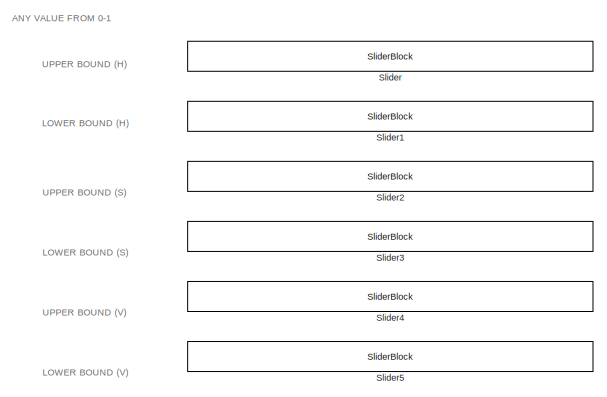
[diagram: root canvas - part 1/2, left side, full height]
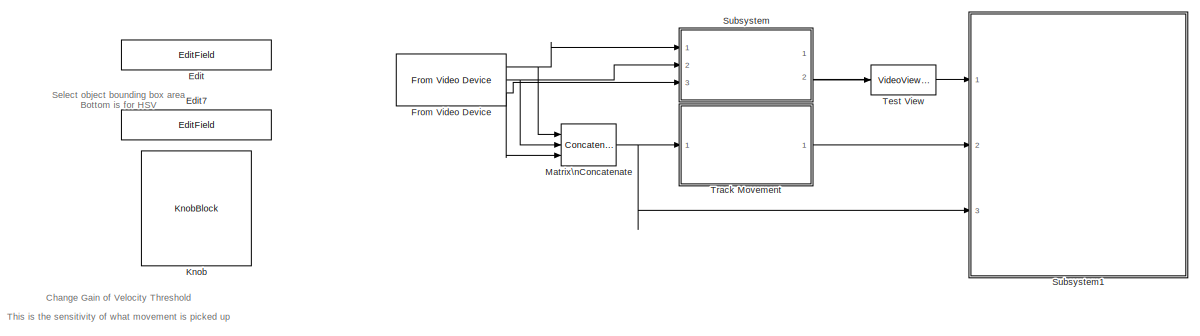
[diagram: root canvas - part 2/2, right side, full height]
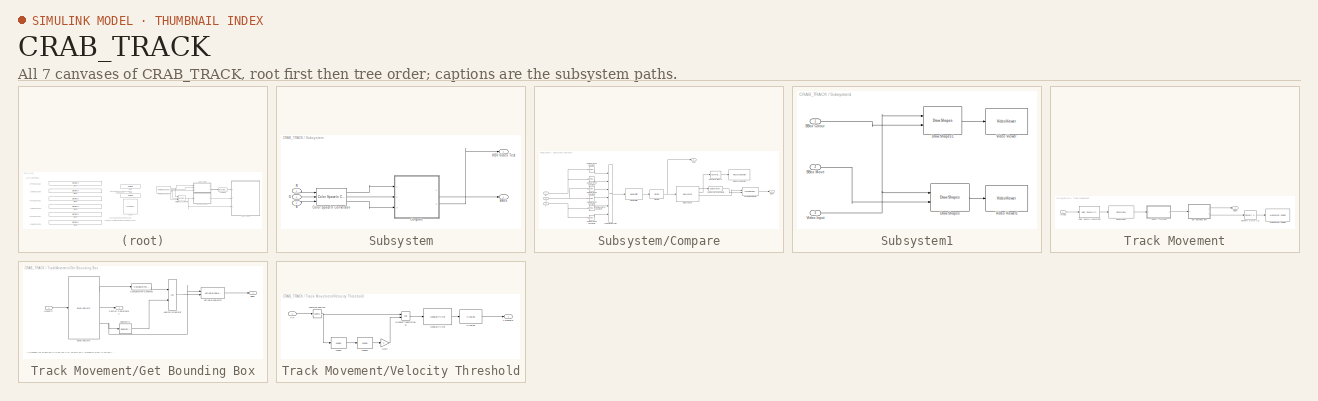
[diagram: thumbnail index - all 7 canvases of the model, root first then tree order]
MODEL CRAB_TRACK
KIND model
BLOCK [EditField] Edit
  Alignment = Center
  BindingPersistence = DataTag0
  LabelPosition = Hide
  SID = 52
  ShowInitialText = on
BLOCK [EditField] Edit7
  Alignment = Center
  BindingPersistence = DataTag1
  LabelPosition = Hide
  SID = 129
  ShowInitialText = on
BLOCK [Reference] From Video Device  REF=imaqlib/From Video Device
  BayerSensorAlignment = grbg
  BlockHandle = 5428.0005
  CanDoHWTrigger = no
  DataType = single
  DevXMLPath = <path>
  Device = winvideo 1 (USB_Camera)
  DeviceMenu = winvideo 1 (USB_Camera)
  EnableHWTrigger = off
  EngLibPath = <path>
  EngXMLPath = <path>
  ImaqMode = off
  MultiThreadCoSim = auto
  ObjConstructor = videoinput('winvideo', 1)
  OutputPortsMode = Separate color signals
  Ports = [0, 3]
  ROIColumn = 0
  ROIHeight = 1080
  ROIPosition = [0 0 1080 1920]
  ROIRow = 0
  ROIWidth = 1920
  ReturnedColorSpace = rgb
  SID = 20
  SampleTime = 1/30
  SourceBlock = imaqlib/From Video Device
  SourceProductBaseCode = IA
  SourceProductName = Image Acquisition Toolbox
  SourceType = From Video Device
  TriggerConfiguration = none/none
  UserData = DataTag2
  UserDataPersistent = on
  VideoFormat = MJPG_1920x1080
  VideoFormatMenu = MJPG_1920x1080
  VideoSource = input1
BLOCK [KnobBlock] Knob
  BindingPersistence = DataTag3
  SID = 53
BLOCK [Concatenate] Matrix\nConcatenate
  ConcatenateDimension = 3
  Mode = Multidimensional array
  NumInputs = 3
  Ports = [3, 1]
  SID = 133
BLOCK [SliderBlock] Slider
  BindingPersistence = DataTag4
  SID = 137
  ScaleMax = 1
BLOCK [SliderBlock] Slider1
  BindingPersistence = DataTag5
  SID = 138
  ScaleMax = 1
BLOCK [SliderBlock] Slider2
  BindingPersistence = DataTag6
  SID = 139
  ScaleMax = 1
BLOCK [SliderBlock] Slider3
  BindingPersistence = DataTag7
  SID = 144
  ScaleMax = 1
BLOCK [SliderBlock] Slider4
  BindingPersistence = DataTag8
  SID = 172
  ScaleMax = 1
BLOCK [SliderBlock] Slider5
  BindingPersistence = DataTag9
  SID = 173
  ScaleMax = 1
BLOCK [SubSystem] Subsystem
  Ports = [3, 2]
  RequestExecContextInheritance = off
  SID = 65
BLOCK [Inport] Subsystem/B
  IconDisplay = Port number
  Port = 3
  SID = 132
BLOCK [Outport] Subsystem/BBox
  IconDisplay = Port number
  SID = 67
BLOCK [Reference] Subsystem/Color Space\n Conversion  REF=visionconversions/Color Space\n Conversion
  MultiThreadCoSim = auto
  Ports = [3, 3]
  SID = 68
  SourceBlock = visionconversions/Color Space\n Conversion
  SourceProductBaseCode = VP
  SourceProductName = Computer Vision Toolbox
  SourceType = Color Space Conversion
  conversion = Obsolete
  conversionActive = R'G'B' to HSV
  imagePorts = Separate color signals
  rec = Rec. 601 (SDTV)
  sys = 1125/60/2:1
  wp_str = D65
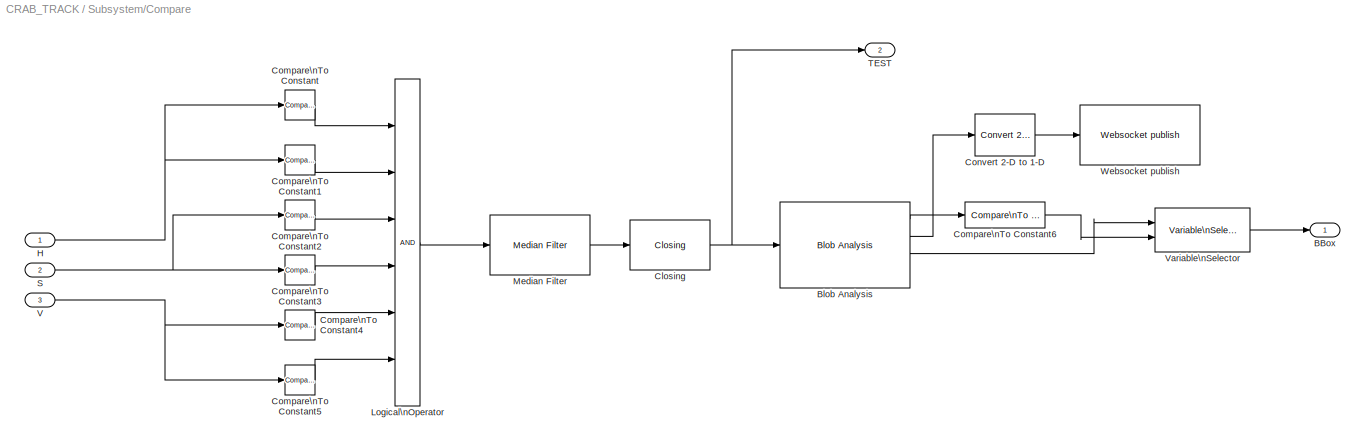
BLOCK [SubSystem] Subsystem/Compare
  Ports = [3, 2]
  RequestExecContextInheritance = off
  SID = 92
BLOCK [Outport] Subsystem/Compare/BBox
  IconDisplay = Port number
  SID = 94
BLOCK [Reference] Subsystem/Compare/Blob Analysis  REF=visionstatistics/Blob Analysis
  LockScale = off
  MultiThreadCoSim = auto
  Ports = [1, 4]
  SID = 101
  SourceBlock = visionstatistics/Blob Analysis
  SourceProductBaseCode = VP
  SourceProductName = Computer Vision Toolbox
  SourceType = Blob Analysis
  Tag = vipblks_row_conv
  accumFracLength = 0
  accumMode = Binary point scaling
  accumSlope = 2^0
  accumWordLength = 32
  angle = off
  area = on
  bBox = on
  centroid = on
  conn = 8
  eccentricity = off
  equivDiameterSq = off
  excludeBorderBlob = off
  extent = off
  fillValues = -1
  firstCoeffFracLength = 14
  firstCoeffMode = Binary point scaling
  firstCoeffSlope = 2^-14
  firstCoeffWordLength = 16
  isCount = off
  isFill = on
  isLabel = on
  isOutVarDim = off
  majorAxis = off
  maxArea = intmax('uint32')
  maxBlobs = 50
  memoryFracLength = 16
  memoryMode = Same as product output
  memorySlope = 2^-16
  memoryWordLength = 32
  minArea = 0
  minorAxis = off
  outDT = double
  outputFracLength = 16
  outputMode = Binary point scaling
  outputSlope = 2^-16
  outputWordLength = 32
  overflowMode = off
  perimeter = off
  prodOutputFracLength = 16
  prodOutputMode = Binary point scaling
  prodOutputSlope = 2^-16
  prodOutputWordLength = 32
  roundingMode = Floor
  secondCoeffFracLength = 16
  secondCoeffMode = Binary point scaling
  secondCoeffSlope = 2^-16
  secondCoeffWordLength = 32
  useMaxArea = off
  useMinArea = off
  warnIfNumBlobsExceeded = on
BLOCK [Reference] Subsystem/Compare/Closing  REF=visionmorphops/Closing
  MultiThreadCoSim = auto
  Ports = [1, 1]
  SID = 136
  SourceBlock = visionmorphops/Closing
  SourceProductBaseCode = VP
  SourceProductName = Computer Vision Toolbox
  SourceType = Closing
  nhoodsrc = Specify via dialog
  strel = strel('line',5,45)
BLOCK [Reference] Subsystem/Compare/Compare\nTo Constant  REF=simulink/Logic and Bit\nOperations/Compare\nTo Constant
  OutDataTypeStr = boolean
  Ports = [1, 1]
  SID = 91
  SourceBlock = simulink/Logic and Bit\nOperations/Compare\nTo Constant
  SourceProductBaseCode = SL
  SourceProductName = Simulink
  SourceType = Compare To Constant
  ZeroCross = on
  const = 1
  relop = <=
BLOCK [Reference] Subsystem/Compare/Compare\nTo Constant1  REF=simulink/Logic and Bit\nOperations/Compare\nTo Constant
  OutDataTypeStr = boolean
  Ports = [1, 1]
  SID = 95
  SourceBlock = simulink/Logic and Bit\nOperations/Compare\nTo Constant
  SourceProductBaseCode = SL
  SourceProductName = Simulink
  SourceType = Compare To Constant
  ZeroCross = on
  const = 0.7899159663865546
  relop = >=
BLOCK [Reference] Subsystem/Compare/Compare\nTo Constant2  REF=simulink/Logic and Bit\nOperations/Compare\nTo Constant
  OutDataTypeStr = boolean
  Ports = [1, 1]
  SID = 96
  SourceBlock = simulink/Logic and Bit\nOperations/Compare\nTo Constant
  SourceProductBaseCode = SL
  SourceProductName = Simulink
  SourceType = Compare To Constant
  ZeroCross = on
  const = 1
  relop = <=
BLOCK [Reference] Subsystem/Compare/Compare\nTo Constant3  REF=simulink/Logic and Bit\nOperations/Compare\nTo Constant
  OutDataTypeStr = boolean
  Ports = [1, 1]
  SID = 97
  SourceBlock = simulink/Logic and Bit\nOperations/Compare\nTo Constant
  SourceProductBaseCode = SL
  SourceProductName = Simulink
  SourceType = Compare To Constant
  ZeroCross = on
  const = 0.1323529411764706
  relop = >=
BLOCK [Reference] Subsystem/Compare/Compare\nTo Constant4  REF=simulink/Logic and Bit\nOperations/Compare\nTo Constant
  OutDataTypeStr = boolean
  Ports = [1, 1]
  SID = 98
  SourceBlock = simulink/Logic and Bit\nOperations/Compare\nTo Constant
  SourceProductBaseCode = SL
  SourceProductName = Simulink
  SourceType = Compare To Constant
  ZeroCross = on
  const = 0.5336134453781513
  relop = <=
BLOCK [Reference] Subsystem/Compare/Compare\nTo Constant5  REF=simulink/Logic and Bit\nOperations/Compare\nTo Constant
  OutDataTypeStr = boolean
  Ports = [1, 1]
  SID = 99
  SourceBlock = simulink/Logic and Bit\nOperations/Compare\nTo Constant
  SourceProductBaseCode = SL
  SourceProductName = Simulink
  SourceType = Compare To Constant
  ZeroCross = on
  const = 0.2247899159663866
  relop = >=
BLOCK [Reference] Subsystem/Compare/Compare\nTo Constant6  REF=simulink/Logic and Bit\nOperations/Compare\nTo Constant
  OutDataTypeStr = boolean
  Ports = [1, 1]
  SID = 126
  SourceBlock = simulink/Logic and Bit\nOperations/Compare\nTo Constant
  SourceProductBaseCode = SL
  SourceProductName = Simulink
  SourceType = Compare To Constant
  ZeroCross = on
  const = 100
  relop = >=
BLOCK [Reference] Subsystem/Compare/Convert 2-D to 1-D  REF=dspsigattribs/Convert 2-D to 1-D
  Ports = [1, 1]
  SID = 127
  SourceBlock = dspsigattribs/Convert 2-D to 1-D
  SourceProductBaseCode = DS
  SourceProductName = DSP System Toolbox
  SourceType = Convert 2-D to 1-D
BLOCK [Inport] Subsystem/Compare/H
  IconDisplay = Port number
  SID = 93
BLOCK [Logic] Subsystem/Compare/Logical\nOperator
  AllPortsSameDT = off
  Inputs = 6
  OutDataTypeStr = boolean
  Ports = [6, 1]
  SID = 100
BLOCK [Reference] Subsystem/Compare/Median Filter  REF=visionanalysis/Median Filter
  LockScale = off
  MultiThreadCoSim = auto
  Ports = [1, 1]
  SID = 135
  SourceBlock = visionanalysis/Median Filter
  SourceProductBaseCode = VP
  SourceProductName = Computer Vision Toolbox
  SourceType = Median Filter
  accumFracLength = 30
  accumMode = Same as input
  accumSlope = 2^-30
  accumWordLength = 32
  nghbood = [3 3]
  outSize = Same as input port I
  outputFracLength = 15
  outputMode = Same as input
  outputSlope = 2^-15
  outputWordLength = 16
  overflowMode = off
  padSrc = Specify via dialog
  padType = Constant
  padVal = 0
  prodOutputFracLength = 30
  prodOutputMode = Same as input
  prodOutputSlope = 2^-30
  prodOutputWordLength = 32
  roundingMode = Floor
BLOCK [Inport] Subsystem/Compare/S
  IconDisplay = Port number
  Port = 2
  SID = 120
BLOCK [Outport] Subsystem/Compare/TEST
  IconDisplay = Port number
  Port = 2
  SID = 134
BLOCK [Inport] Subsystem/Compare/V
  IconDisplay = Port number
  Port = 3
  SID = 121
BLOCK [Reference] Subsystem/Compare/Variable\nSelector  REF=dspindex/Variable\nSelector
  Elements = [1 3]
  FillMode = on
  FillValues = 0
  IdxMode = Variable
  MultiThreadCoSim = auto
  NumInputs = 1
  Ports = [2, 1]
  SID = 123
  ShowPortLabels = off
  SourceBlock = dspindex/Variable\nSelector
  SourceProductBaseCode = DS
  SourceProductName = DSP System Toolbox
  SourceType = Variable Selector
  ZerOneIdxMode = One-based
  errmode = Clip Index
  rowsOrCols = Rows
BLOCK [Reference] Subsystem/Compare/Websocket publish  REF=raspberrypilib/Websocket publish
  IPAddress = 127.0.0.1
  NumberOfSignals = 1
  Port = 9000
  Ports = [1]
  SID = 128
  SourceBlock = raspberrypilib/Websocket publish
  SourceProductBaseCode = RASPPI
  SourceProductName = Simulink Support Package for Raspberry Pi Hardware
  SourceType = codertarget.raspi.internal.webPublish
  UniqueBlockID = webPub 1
BLOCK [Inport] Subsystem/G
  IconDisplay = Port number
  Port = 2
  SID = 131
BLOCK [Outport] Subsystem/HSV Video Test
  IconDisplay = Port number
  Port = 2
  SID = 79
BLOCK [Inport] Subsystem/R
  IconDisplay = Port number
  SID = 66
BLOCK [SubSystem] Subsystem1
  Ports = [3]
  RequestExecContextInheritance = off
  SID = 12
BLOCK [Inport] Subsystem1/BBox Colour
  IconDisplay = Port number
  SID = 13
BLOCK [Inport] Subsystem1/BBox Move
  IconDisplay = Port number
  Port = 2
  SID = 14
BLOCK [Reference] Subsystem1/Draw Shapes  REF=visiontextngfix/Draw Shapes
  LockScale = off
  MultiThreadCoSim = auto
  Ports = [2, 1]
  SID = 16
  SourceBlock = visiontextngfix/Draw Shapes
  SourceProductBaseCode = VP
  SourceProductName = Computer Vision Toolbox
  SourceType = Draw Shapes
  accumFracLength = 14
  accumMode = Same as product output
  accumSlope = 2^-14
  accumWordLength = 32
  antialiasing = off
  color = [0 255 0]
  display = User-specified value
  fill = off
  fillClrSource = Specify via dialog
  imagePorts = One multidimensional signal
  inType = Obsolete
  intensity = 200
  lineWidth = 1
  memoryFracLength = 15
  memoryMode = Specify word length
  memoryWordLength = 16
  opacity = 0.6
  overflowMode = off
  prodOutputFracLength = 14
  prodOutputMode = Binary point scaling
  prodOutputSlope = 2^-14
  prodOutputWordLength = 32
  roundingMode = Floor
  shape = Rectangles
  viewport = Entire image
BLOCK [Reference] Subsystem1/Draw Shapes1  REF=visiontextngfix/Draw Shapes
  LockScale = off
  MultiThreadCoSim = auto
  Ports = [2, 1]
  SID = 64
  SourceBlock = visiontextngfix/Draw Shapes
  SourceProductBaseCode = VP
  SourceProductName = Computer Vision Toolbox
  SourceType = Draw Shapes
  accumFracLength = 14
  accumMode = Same as product output
  accumSlope = 2^-14
  accumWordLength = 32
  antialiasing = off
  color = [0 255 0]
  display = User-specified value
  fill = off
  fillClrSource = Specify via dialog
  imagePorts = One multidimensional signal
  inType = Obsolete
  intensity = 200
  lineWidth = 1
  memoryFracLength = 15
  memoryMode = Specify word length
  memoryWordLength = 16
  opacity = 0.6
  overflowMode = off
  prodOutputFracLength = 14
  prodOutputMode = Binary point scaling
  prodOutputSlope = 2^-14
  prodOutputWordLength = 32
  roundingMode = Floor
  shape = Rectangles
  viewport = Entire image
BLOCK [Inport] Subsystem1/Video Input
  IconDisplay = Port number
  Port = 3
  SID = 15
BLOCK [VideoViewer] Subsystem1/Video Viewer
  FigPos = [962 1037 958 929]
  Ports = [1]
  SID = 17
  ScopeSpecificationString = vipscopes.VideoViewerScopeCfg('CurrentConfiguration', extmgr.ConfigurationSet(extmgr.Configuration('Core','General UI',true),extmgr.Configuration('Core','Source UI',true),extmgr.Configuration('Sources','WiredSimulink',true),extmgr.Configuration('Visuals','Video',true),extmgr.Configuration('Tools','Image Navigation Tools',true),extmgr.Configuration('Tools','Image Tool',true),extmgr.Configuration('T...<+74ch>
BLOCK [VideoViewer] Subsystem1/Video Viewer1
  FigPos = [2 517 958 409]
  Ports = [1]
  SID = 18
  ScopeSpecificationString = vipscopes.VideoViewerScopeCfg('CurrentConfiguration', extmgr.ConfigurationSet(extmgr.Configuration('Core','General UI',true),extmgr.Configuration('Core','Source UI',true),extmgr.Configuration('Sources','WiredSimulink',true),extmgr.Configuration('Visuals','Video',true),extmgr.Configuration('Tools','Image Navigation Tools',true),extmgr.Configuration('Tools','Image Tool',true),extmgr.Configuration('T...<+73ch>
BLOCK [VideoViewer] Test View
  FigPos = [962 1037 958 929]
  Ports = [1]
  SID = 80
  ScopeSpecificationString = vipscopes.VideoViewerScopeCfg('CurrentConfiguration', extmgr.ConfigurationSet(extmgr.Configuration('Core','General UI',true),extmgr.Configuration('Core','Source UI',true),extmgr.Configuration('Sources','WiredSimulink',true),extmgr.Configuration('Visuals','Video',true),extmgr.Configuration('Tools','Image Navigation Tools',true),extmgr.Configuration('Tools','Image Tool',true),extmgr.Configuration('T...<+74ch>
BLOCK [SubSystem] Track Movement
  Commented = on
  Ports = [1, 1]
  RequestExecContextInheritance = off
  SID = 23
BLOCK [Outport] Track Movement/BBox
  IconDisplay = Port number
  SID = 47
BLOCK [Reference] Track Movement/Color Space\n Conversion  REF=visionconversions/Color Space\n Conversion
  MultiThreadCoSim = auto
  Ports = [1, 1]
  SID = 22
  SourceBlock = visionconversions/Color Space\n Conversion
  SourceProductBaseCode = VP
  SourceProductName = Computer Vision Toolbox
  SourceType = Color Space Conversion
  conversion = Obsolete
  conversionActive = R'G'B' to intensity
  imagePorts = One multidimensional signal
  rec = Rec. 601 (SDTV)
  sys = 1125/60/2:1
  wp_str = D65
BLOCK [Reference] Track Movement/Convert 2-D to 1-D  REF=dspsigattribs/Convert 2-D to 1-D
  Ports = [1, 1]
  SID = 1
  SourceBlock = dspsigattribs/Convert 2-D to 1-D
  SourceProductBaseCode = DS
  SourceProductName = DSP System Toolbox
  SourceType = Convert 2-D to 1-D
BLOCK [SubSystem] Track Movement/Get Bounding Box
  Ports = [1, 2]
  RequestExecContextInheritance = off
  SID = 26
BLOCK [Outport] Track Movement/Get Bounding Box/BBox
  IconDisplay = Port number
  SID = 33
BLOCK [Reference] Track Movement/Get Bounding Box/Blob Analysis  REF=visionstatistics/Blob Analysis
  LockScale = off
  MultiThreadCoSim = auto
  Ports = [1, 3]
  SID = 28
  SourceBlock = visionstatistics/Blob Analysis
  SourceProductBaseCode = VP
  SourceProductName = Computer Vision Toolbox
  SourceType = Blob Analysis
  Tag = vipblks_row_conv
  accumFracLength = 0
  accumMode = Binary point scaling
  accumSlope = 2^0
  accumWordLength = 32
  angle = off
  area = on
  bBox = on
  centroid = on
  conn = 8
  eccentricity = off
  equivDiameterSq = off
  excludeBorderBlob = off
  extent = off
  fillValues = -1
  firstCoeffFracLength = 14
  firstCoeffMode = Binary point scaling
  firstCoeffSlope = 2^-14
  firstCoeffWordLength = 16
  isCount = off
  isFill = on
  isLabel = off
  isOutVarDim = off
  majorAxis = off
  maxArea = intmax('uint32')
  maxBlobs = 50
  memoryFracLength = 16
  memoryMode = Same as product output
  memorySlope = 2^-16
  memoryWordLength = 32
  minArea = 0
  minorAxis = off
  outDT = double
  outputFracLength = 16
  outputMode = Binary point scaling
  outputSlope = 2^-16
  outputWordLength = 32
  overflowMode = off
  perimeter = off
  prodOutputFracLength = 16
  prodOutputMode = Binary point scaling
  prodOutputSlope = 2^-16
  prodOutputWordLength = 32
  roundingMode = Floor
  secondCoeffFracLength = 16
  secondCoeffMode = Binary point scaling
  secondCoeffSlope = 2^-16
  secondCoeffWordLength = 32
  useMaxArea = off
  useMinArea = off
  warnIfNumBlobsExceeded = on
BLOCK [Outport] Track Movement/Get Bounding Box/Central Coordinates
  IconDisplay = Port number
  Port = 2
  SID = 34
BLOCK [Reference] Track Movement/Get Bounding Box/Compare\nTo Constant  REF=simulink/Logic and Bit\nOperations/Compare\nTo Constant
  OutDataTypeStr = boolean
  Ports = [1, 1]
  SID = 29
  SourceBlock = simulink/Logic and Bit\nOperations/Compare\nTo Constant
  SourceProductBaseCode = SL
  SourceProductName = Simulink
  SourceType = Compare To Constant
  ZeroCross = on
  const = 1500
  relop = >=
BLOCK [Inport] Track Movement/Get Bounding Box/Intensity
  IconDisplay = Port number
  SID = 27
BLOCK [Logic] Track Movement/Get Bounding Box/Logical\nOperator
  AllPortsSameDT = off
  OutDataTypeStr = boolean
  Ports = [2, 1]
  SID = 30
BLOCK [Reference] Track Movement/Get Bounding Box/Submatrix  REF=dspmtrx3/Submatrix
  ColEndIndex = 1
  ColEndMode = Last
  ColSpan = One column
  ColStartIndex = 1
  ColStartMode = First
  MultiThreadCoSim = auto
  Ports = [1, 1]
  RowEndIndex = 1
  RowEndMode = Last
  RowSpan = All rows
  RowStartIndex = 1
  RowStartMode = First
  SID = 31
  SourceBlock = dspmtrx3/Submatrix
  SourceProductBaseCode = DS
  SourceProductName = DSP System Toolbox
  SourceType = Submatrix
BLOCK [Reference] Track Movement/Get Bounding Box/Variable\nSelector  REF=dspindex/Variable\nSelector
  Elements = [1 3]
  FillMode = on
  FillValues = 0
  IdxMode = Variable
  MultiThreadCoSim = auto
  NumInputs = 1
  Ports = [2, 1]
  SID = 32
  ShowPortLabels = off
  SourceBlock = dspindex/Variable\nSelector
  SourceProductBaseCode = DS
  SourceProductName = DSP System Toolbox
  SourceType = Variable Selector
  ZerOneIdxMode = One-based
  errmode = Clip Index
  rowsOrCols = Rows
BLOCK [Inport] Track Movement/Image
  IconDisplay = Port number
  SID = 24
BLOCK [Reference] Track Movement/Optical Flow  REF=visionanalysis/Optical Flow
  LockScale = off
  N = 1
  Ports = [1, 1]
  SID = 36
  SourceBlock = visionanalysis/Optical Flow
  SourceProductBaseCode = VP
  SourceProductName = Computer Vision Toolbox
  SourceType = Optical Flow
  accumFracLength = 20
  accumMode = Same as product output
  accumSlope = 2^-20
  accumWordLength = 32
  discardNormalFlow = off
  eigTh = 0.0039
  firstCoeffFracLength = 12
  firstCoeffMode = Same word length as first input
  firstCoeffSlope = 2^-20
  firstCoeffWordLength = 16
  gradMethod = Difference filter [-1 1]
  lambda = 1
  maxAllowAbsDiff = eps
  maxIter = 10
  memoryFracLength = 20
  memoryMode = Same as accumulator
  memorySlope = 2^-20
  memoryWordLength = 32
  method = Horn-Schunck
  numInports = 3
  outVelForm = Horizontal and vertical components in complex form
  outputCurrentImage = off
  outputFracLength = 20
  outputMode = Binary point scaling
  outputSlope = 2^-20
  outputWordLength = 32
  overflowMode = on
  prodOutputFracLength = 20
  prodOutputMode = Binary point scaling
  prodOutputSlope = 2^-20
  prodOutputWordLength = 32
  roundingMode = Nearest
  sigmaS = 1.5
  sigmaW = 1
  stop_criteria = When maximum number of iterations is reached
  which2img = Current frame and N-th frame back
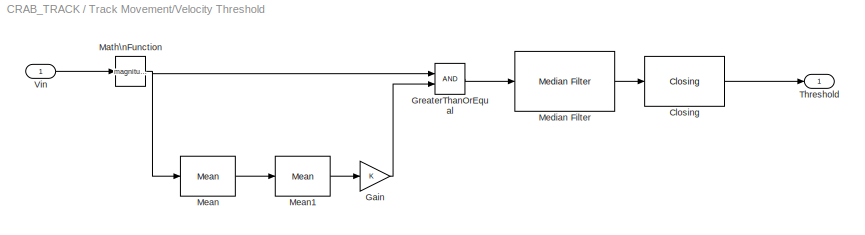
BLOCK [SubSystem] Track Movement/Velocity Threshold
  Ports = [1, 1]
  RequestExecContextInheritance = off
  SID = 37
BLOCK [Reference] Track Movement/Velocity Threshold/Closing  REF=visionmorphops/Closing
  MultiThreadCoSim = auto
  Ports = [1, 1]
  SID = 39
  SourceBlock = visionmorphops/Closing
  SourceProductBaseCode = VP
  SourceProductName = Computer Vision Toolbox
  SourceType = Closing
  nhoodsrc = Specify via dialog
  strel = strel('line',5,45)
BLOCK [Gain] Track Movement/Velocity Threshold/Gain
  OutDataTypeStr = Inherit: Inherit via internal rule
  ParamDataTypeStr = Inherit: Inherit via internal rule
  SID = 40
  SaturateOnIntegerOverflow = off
BLOCK [RelationalOperator] Track Movement/Velocity Threshold/GreaterThanOrEqual
  InputSameDT = off
  OutDataTypeStr = boolean
  Ports = [2, 1]
  RndMeth = Simplest
  SID = 41
BLOCK [Math] Track Movement/Velocity Threshold/Math\nFunction
  Operator = magnitude^2
  Ports = [1, 1]
  SID = 42
  SignedPower = off
BLOCK [Reference] Track Movement/Velocity Threshold/Mean  REF=dspstat3/Mean
  InputProcessing = Columns as channels (frame based)
  LockScale = off
  MultiThreadCoSim = auto
  Ports = [1, 1]
  SID = 43
  SourceBlock = dspstat3/Mean
  SourceProductBaseCode = DS
  SourceProductName = DSP System Toolbox
  SourceType = Mean
  UserData = DataTag10
  UserDataPersistent = on
  accumDataTypeStr = Inherit: Same as input
  accumFracLength = 30
  accumLastDataTypeStr = Inherit: Same as input
  accumMode = Same as input
  accumWordLength = 32
  additionalParams = off
  allowOverrides = on
  dimension = 1
  directionMode = Entire input
  outputDataTypeStr = Inherit: Same as accumulator
  outputFracLength = 30
  outputLastDataTypeStr = Inherit: Same as accumulator
  outputMax = []
  outputMin = []
  outputMode = Same as accumulator
  outputWordLength = 32
  overflowMode = off
  reset_popup = None
  roiEnable = off
  roiFlag = off
  roiOutput = Individual statistics for each ROI
  roiPortion = Entire ROI
  roiType = Rectangles
  roundingMode = Floor
  run = off
BLOCK [Reference] Track Movement/Velocity Threshold/Mean1  REF=dspstat3/Mean
  InputProcessing = Columns as channels (frame based)
  LockScale = off
  MultiThreadCoSim = auto
  Ports = [1, 1]
  SID = 44
  SourceBlock = dspstat3/Mean
  SourceProductBaseCode = DS
  SourceProductName = DSP System Toolbox
  SourceType = Mean
  UserData = DataTag11
  UserDataPersistent = on
  accumDataTypeStr = Inherit: Same as input
  accumFracLength = 30
  accumLastDataTypeStr = Inherit: Same as input
  accumMode = Same as input
  accumWordLength = 32
  additionalParams = off
  allowOverrides = on
  dimension = 1
  directionMode = Each column
  outputDataTypeStr = Inherit: Same as accumulator
  outputFracLength = 30
  outputLastDataTypeStr = Inherit: Same as accumulator
  outputMax = []
  outputMin = []
  outputMode = Same as accumulator
  outputWordLength = 32
  overflowMode = off
  reset_popup = None
  roiEnable = off
  roiFlag = off
  roiOutput = Individual statistics for each ROI
  roiPortion = Entire ROI
  roiType = Rectangles
  roundingMode = Floor
  run = on
BLOCK [Reference] Track Movement/Velocity Threshold/Median Filter  REF=visionanalysis/Median Filter
  LockScale = off
  MultiThreadCoSim = auto
  Ports = [1, 1]
  SID = 45
  SourceBlock = visionanalysis/Median Filter
  SourceProductBaseCode = VP
  SourceProductName = Computer Vision Toolbox
  SourceType = Median Filter
  accumFracLength = 30
  accumMode = Same as input
  accumSlope = 2^-30
  accumWordLength = 32
  nghbood = [3 3]
  outSize = Same as input port I
  outputFracLength = 15
  outputMode = Same as input
  outputSlope = 2^-15
  outputWordLength = 16
  overflowMode = off
  padSrc = Specify via dialog
  padType = Constant
  padVal = 0
  prodOutputFracLength = 30
  prodOutputMode = Same as input
  prodOutputSlope = 2^-30
  prodOutputWordLength = 32
  roundingMode = Floor
BLOCK [Outport] Track Movement/Velocity Threshold/Threshold
  IconDisplay = Port number
  SID = 46
BLOCK [Inport] Track Movement/Velocity Threshold/Vin
  IconDisplay = Port number
  SID = 38
BLOCK [Reference] Track Movement/Websocket publish  REF=raspberrypilib/Websocket publish
  IPAddress = 127.0.0.1
  NumberOfSignals = 1
  Port = 9000
  Ports = [1]
  SID = 19
  SourceBlock = raspberrypilib/Websocket publish
  SourceProductBaseCode = RASPPI
  SourceProductName = Simulink Support Package for Raspberry Pi Hardware
  SourceType = codertarget.raspi.internal.webPublish
  UniqueBlockID = webPub 1
ANNOTATION (root): \n \n ANY VALUE FROM 0-1
ANNOTATION (root): \n \n Change Gain of Velocity Threshold \n
ANNOTATION (root): \n \n LOWER BOUND (H)
ANNOTATION (root): \n \n LOWER BOUND (S)
ANNOTATION (root): \n \n LOWER BOUND (V)
ANNOTATION (root): \n \n Select object bounding box area \n Bottom is for HSV
ANNOTATION (root): \n \n UPPER BOUND (S)
ANNOTATION (root): \n \n UPPER BOUND (V)
ANNOTATION (root): \n \n UPPER BOUND (H)
ANNOTATION (root): This is the sensitivity of what movement is picked up\n
ANNOTATION Track Movement/Get Bounding Box: //Changed the SUBMATRIX to be the first column only (Research what is correct) ---> Default is all columns (50x4)//
NET From Video Device:1 -> Matrix\nConcatenate:1, Subsystem:1
NET From Video Device:2 -> Matrix\nConcatenate:2, Subsystem:2
NET From Video Device:3 -> Matrix\nConcatenate:3, Subsystem:3
NET Matrix\nConcatenate:1 -> Subsystem1:3, Track Movement:1
LINE Subsystem/B:1 -> Subsystem/Color Space\n Conversion:3
LINE Subsystem/Color Space\n Conversion:1 -> Subsystem/Compare:1
LINE Subsystem/Color Space\n Conversion:2 -> Subsystem/Compare:2
LINE Subsystem/Color Space\n Conversion:3 -> Subsystem/Compare:3
LINE Subsystem/Compare/Blob Analysis:1 -> Subsystem/Compare/Compare\nTo Constant6:1
LINE Subsystem/Compare/Blob Analysis:2 -> Subsystem/Compare/Convert 2-D to 1-D:1
LINE Subsystem/Compare/Blob Analysis:3 -> Subsystem/Compare/Variable\nSelector:1
NET Subsystem/Compare/Closing:1 -> Subsystem/Compare/Blob Analysis:1, Subsystem/Compare/TEST:1
LINE Subsystem/Compare/Compare\nTo Constant1:1 -> Subsystem/Compare/Logical\nOperator:2
LINE Subsystem/Compare/Compare\nTo Constant2:1 -> Subsystem/Compare/Logical\nOperator:3
LINE Subsystem/Compare/Compare\nTo Constant3:1 -> Subsystem/Compare/Logical\nOperator:4
LINE Subsystem/Compare/Compare\nTo Constant4:1 -> Subsystem/Compare/Logical\nOperator:5
LINE Subsystem/Compare/Compare\nTo Constant5:1 -> Subsystem/Compare/Logical\nOperator:6
LINE Subsystem/Compare/Compare\nTo Constant6:1 -> Subsystem/Compare/Variable\nSelector:2
LINE Subsystem/Compare/Compare\nTo Constant:1 -> Subsystem/Compare/Logical\nOperator:1
LINE Subsystem/Compare/Convert 2-D to 1-D:1 -> Subsystem/Compare/Websocket publish:1
NET Subsystem/Compare/H:1 -> Subsystem/Compare/Compare\nTo Constant1:1, Subsystem/Compare/Compare\nTo Constant:1
LINE Subsystem/Compare/Logical\nOperator:1 -> Subsystem/Compare/Median Filter:1
LINE Subsystem/Compare/Median Filter:1 -> Subsystem/Compare/Closing:1
NET Subsystem/Compare/S:1 -> Subsystem/Compare/Compare\nTo Constant2:1, Subsystem/Compare/Compare\nTo Constant3:1
NET Subsystem/Compare/V:1 -> Subsystem/Compare/Compare\nTo Constant4:1, Subsystem/Compare/Compare\nTo Constant5:1
LINE Subsystem/Compare/Variable\nSelector:1 -> Subsystem/Compare/BBox:1
LINE Subsystem/Compare:1 -> Subsystem/BBox:1
LINE Subsystem/Compare:2 -> Subsystem/HSV Video Test:1
LINE Subsystem/G:1 -> Subsystem/Color Space\n Conversion:2
LINE Subsystem/R:1 -> Subsystem/Color Space\n Conversion:1
LINE Subsystem1/BBox Colour:1 -> Subsystem1/Draw Shapes1:2
LINE Subsystem1/BBox Move:1 -> Subsystem1/Draw Shapes:2
LINE Subsystem1/Draw Shapes1:1 -> Subsystem1/Video Viewer:1
LINE Subsystem1/Draw Shapes:1 -> Subsystem1/Video Viewer1:1
NET Subsystem1/Video Input:1 -> Subsystem1/Draw Shapes1:1, Subsystem1/Draw Shapes:1
LINE Subsystem:1 -> Subsystem1:1
LINE Subsystem:2 -> Test View:1
LINE Track Movement/Color Space\n Conversion:1 -> Track Movement/Optical Flow:1
LINE Track Movement/Convert 2-D to 1-D:1 -> Track Movement/Websocket publish:1
LINE Track Movement/Get Bounding Box/Blob Analysis:1 -> Track Movement/Get Bounding Box/Compare\nTo Constant:1
LINE Track Movement/Get Bounding Box/Blob Analysis:2 -> Track Movement/Get Bounding Box/Central Coordinates:1
NET Track Movement/Get Bounding Box/Blob Analysis:3 -> Track Movement/Get Bounding Box/Submatrix:1, Track Movement/Get Bounding Box/Variable\nSelector:1
LINE Track Movement/Get Bounding Box/Compare\nTo Constant:1 -> Track Movement/Get Bounding Box/Logical\nOperator:1
LINE Track Movement/Get Bounding Box/Intensity:1 -> Track Movement/Get Bounding Box/Blob Analysis:1
LINE Track Movement/Get Bounding Box/Logical\nOperator:1 -> Track Movement/Get Bounding Box/Variable\nSelector:2
LINE Track Movement/Get Bounding Box/Submatrix:1 -> Track Movement/Get Bounding Box/Logical\nOperator:2
LINE Track Movement/Get Bounding Box/Variable\nSelector:1 -> Track Movement/Get Bounding Box/BBox:1
LINE Track Movement/Get Bounding Box:1 -> Track Movement/BBox:1
LINE Track Movement/Get Bounding Box:2 -> Track Movement/Convert 2-D to 1-D:1
LINE Track Movement/Image:1 -> Track Movement/Color Space\n Conversion:1
LINE Track Movement/Optical Flow:1 -> Track Movement/Velocity Threshold:1
LINE Track Movement/Velocity Threshold/Closing:1 -> Track Movement/Velocity Threshold/Threshold:1
LINE Track Movement/Velocity Threshold/Gain:1 -> Track Movement/Velocity Threshold/GreaterThanOrEqual:2
LINE Track Movement/Velocity Threshold/GreaterThanOrEqual:1 -> Track Movement/Velocity Threshold/Median Filter:1
NET Track Movement/Velocity Threshold/Math\nFunction:1 -> Track Movement/Velocity Threshold/GreaterThanOrEqual:1, Track Movement/Velocity Threshold/Mean:1
LINE Track Movement/Velocity Threshold/Mean1:1 -> Track Movement/Velocity Threshold/Gain:1
LINE Track Movement/Velocity Threshold/Mean:1 -> Track Movement/Velocity Threshold/Mean1:1
LINE Track Movement/Velocity Threshold/Median Filter:1 -> Track Movement/Velocity Threshold/Closing:1
LINE Track Movement/Velocity Threshold/Vin:1 -> Track Movement/Velocity Threshold/Math\nFunction:1
LINE Track Movement/Velocity Threshold:1 -> Track Movement/Get Bounding Box:1
LINE Track Movement:1 -> Subsystem1:2
note: NET lines group one-source signal fan-out (src -> all destinations, sorted); 1:1 wires keep LINE
note: 3 file-system paths scrubbed to <path> (not preserved elsewhere — flat text is the only slx artifact)
